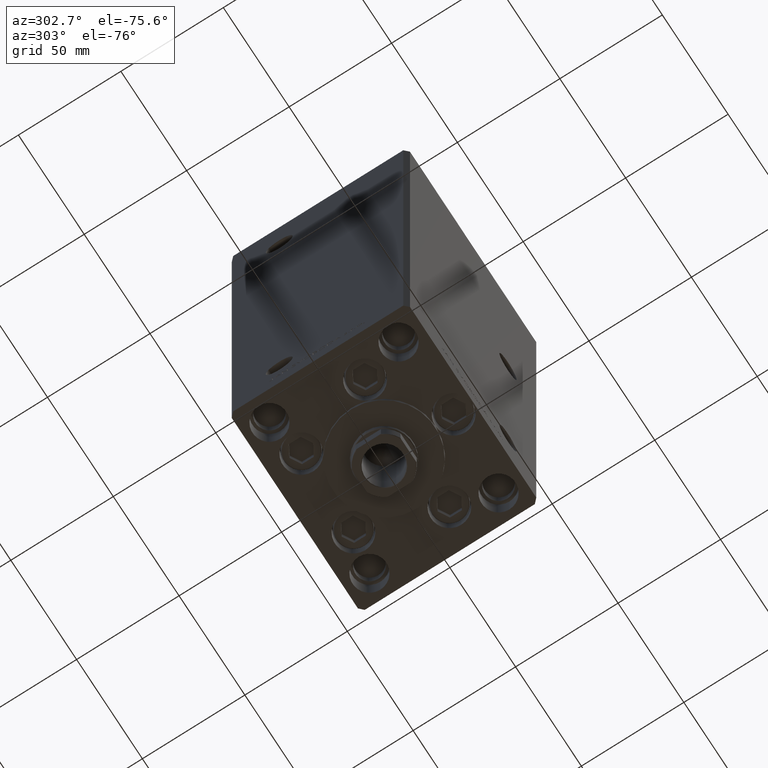
[diagram: clean part render]
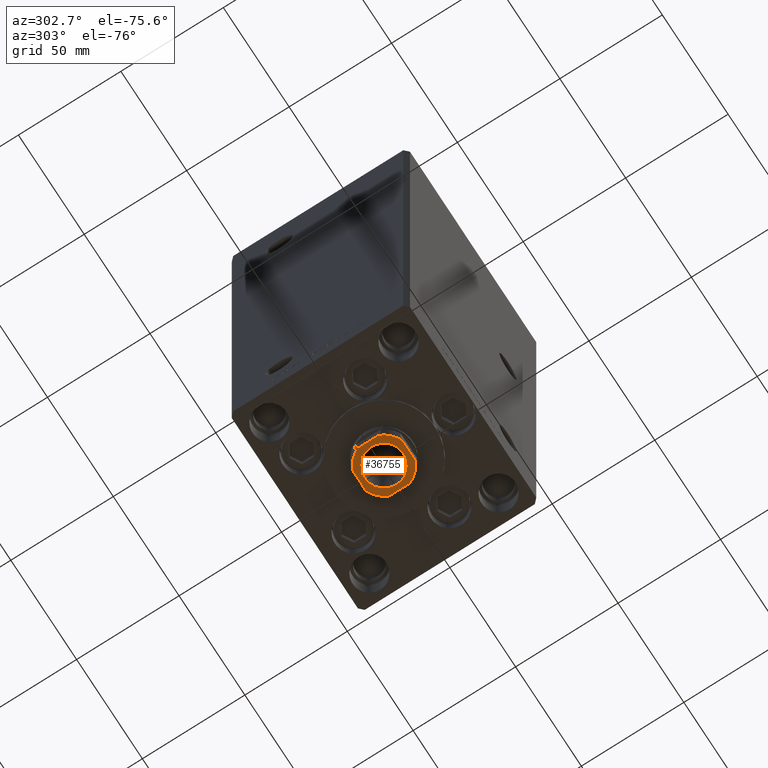
[diagram: same view with one face highlighted and labeled with its STEP entity id]
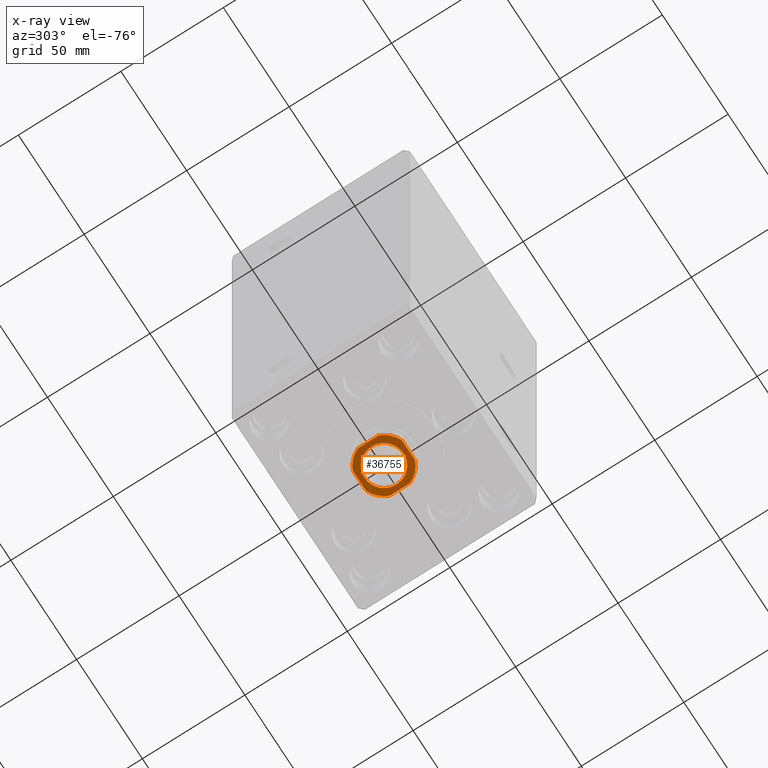
[diagram: x-ray of the same camera — body ghosted, the highlighted face saturated]
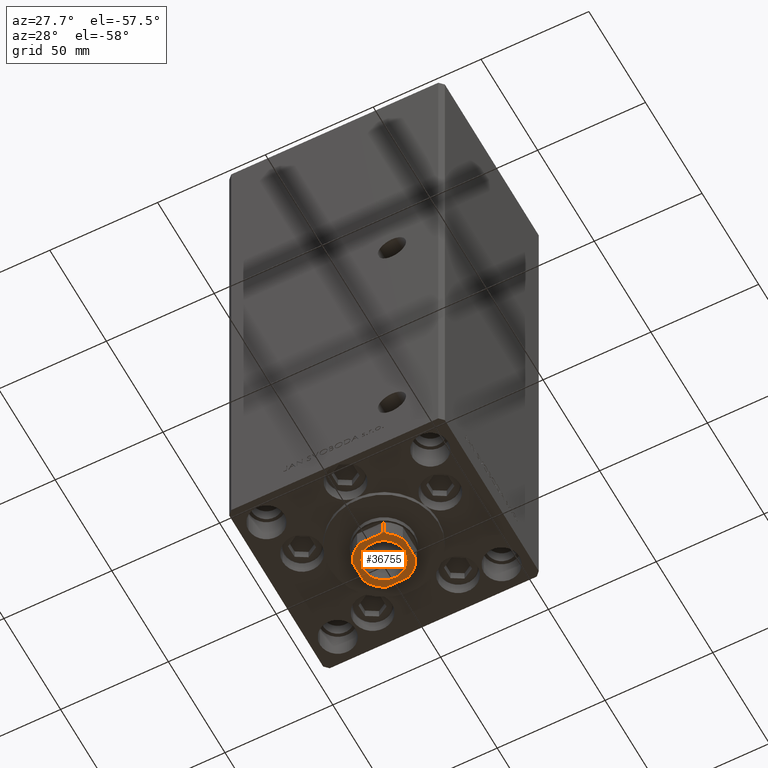
[diagram: same view with one face highlighted and labeled with its STEP entity id]
A machine part, auxiliary view. The second image highlights one B-rep face of the part: STEP entity #36755.
The next image is the same camera in x-ray: the body ghosted, the highlighted face saturated — about 0% of this face is hidden behind the body in this view.
A second angle (auxiliary view) of the same face is appended — the face is thin or edge-on in the first view.
In plain terms, the highlighted planar face has unit normal (0, 0, -1).
Its self-contained STEP definition (entity closure, byte-faithful):
#308 = VERTEX_POINT ( 'NONE', #23030 ) ;
#1111 = DIRECTION ( 'NONE',  ( -0.000000000000000000, 0.000000000000000000, 1.000000000000000000 ) ) ;
#1240 = AXIS2_PLACEMENT_3D ( 'NONE', #31363, #46816, #12111 ) ;
#1353 = LINE ( 'NONE', #32235, #31268 ) ;
#3133 = CARTESIAN_POINT ( 'NONE',  ( 0.000000000000000000, 0.000000000000000000, 235.2500000000000284 ) ) ;
#3930 = EDGE_CURVE ( 'NONE', #17276, #12639, #41546, .T. ) ;
#4208 = CIRCLE ( 'NONE', #11490, 13.00000000000000000 ) ;
#4553 = ORIENTED_EDGE ( 'NONE', *, *, #43275, .T. ) ;
#4821 = CARTESIAN_POINT ( 'NONE',  ( 12.00000000000000178, 4.999999999999994671, 235.2500000000000284 ) ) ;
#6133 = VERTEX_POINT ( 'NONE', #17441 ) ;
#6203 = ORIENTED_EDGE ( 'NONE', *, *, #18767, .T. ) ;
#6729 = CIRCLE ( 'NONE', #23700, 13.00000000000000000 ) ;
#7023 = CARTESIAN_POINT ( 'NONE',  ( -11.99999999999999822, 5.000000000000000888, 235.2500000000000284 ) ) ;
#8615 = VERTEX_POINT ( 'NONE', #9140 ) ;
#8918 = VERTEX_POINT ( 'NONE', #7023 ) ;
#9022 = VERTEX_POINT ( 'NONE', #28773 ) ;
#9140 = CARTESIAN_POINT ( 'NONE',  ( 5.000000000000002665, 12.00000000000000000, 235.2500000000000284 ) ) ;
#9933 = CARTESIAN_POINT ( 'NONE',  ( -11.99999999999999822, 11.99999999999999822, 235.2500000000000284 ) ) ;
#10920 = DIRECTION ( 'NONE',  ( -0.000000000000000000, 0.000000000000000000, 1.000000000000000000 ) ) ;
#11144 = AXIS2_PLACEMENT_3D ( 'NONE', #48764, #41901, #22645 ) ;
#11377 = VERTEX_POINT ( 'NONE', #18659 ) ;
#11490 = AXIS2_PLACEMENT_3D ( 'NONE', #31794, #39637, #28004 ) ;
#12111 = DIRECTION ( 'NONE',  ( 1.000000000000000000, 0.000000000000000000, 0.000000000000000000 ) ) ;
#12639 = VERTEX_POINT ( 'NONE', #4821 ) ;
#13342 = CIRCLE ( 'NONE', #30322, 13.00000000000000000 ) ;
#13727 = DIRECTION ( 'NONE',  ( 7.228014483236695816E-17, -1.000000000000000000, 0.000000000000000000 ) ) ;
#14174 = CIRCLE ( 'NONE', #39300, 9.550000000000002487 ) ;
#16775 = DIRECTION ( 'NONE',  ( 1.000000000000000000, 7.228014483236695816E-17, 0.000000000000000000 ) ) ;
#17276 = VERTEX_POINT ( 'NONE', #25925 ) ;
#17348 = ORIENTED_EDGE ( 'NONE', *, *, #27187, .T. ) ;
#17441 = CARTESIAN_POINT ( 'NONE',  ( 4.999999999999993783, -12.00000000000000178, 235.2500000000000284 ) ) ;
#17756 = DIRECTION ( 'NONE',  ( 1.000000000000000000, 0.000000000000000000, 0.000000000000000000 ) ) ;
#18000 = ORIENTED_EDGE ( 'NONE', *, *, #3930, .T. ) ;
#18659 = CARTESIAN_POINT ( 'NONE',  ( 9.550000000000002487, 0.000000000000000000, 235.2500000000000284 ) ) ;
#18767 = EDGE_CURVE ( 'NONE', #12639, #8615, #38420, .T. ) ;
#18792 = FACE_OUTER_BOUND ( 'NONE', #31934, .T. ) ;
#18813 = EDGE_CURVE ( 'NONE', #9022, #11377, #14174, .T. ) ;
#19038 = FACE_BOUND ( 'NONE', #20611, .T. ) ;
#19218 = CARTESIAN_POINT ( 'NONE',  ( 12.00000000000000000, 12.00000000000000000, 235.2500000000000284 ) ) ;
#20583 = CARTESIAN_POINT ( 'NONE',  ( 0.000000000000000000, 0.000000000000000000, 235.2500000000000284 ) ) ;
#20611 = EDGE_LOOP ( 'NONE', ( #23574, #23853 ) ) ;
#21036 = LINE ( 'NONE', #48643, #22255 ) ;
#21330 = LINE ( 'NONE', #9933, #29301 ) ;
#21814 = EDGE_CURVE ( 'NONE', #11377, #9022, #46734, .T. ) ;
#22255 = VECTOR ( 'NONE', #32702, 1000.000000000000000 ) ;
#22645 = DIRECTION ( 'NONE',  ( 1.000000000000000000, 0.000000000000000000, 0.000000000000000000 ) ) ;
#23030 = CARTESIAN_POINT ( 'NONE',  ( -11.99999999999999822, -5.000000000000001776, 235.2500000000000284 ) ) ;
#23501 = DIRECTION ( 'NONE',  ( 1.000000000000000000, 0.000000000000000000, 0.000000000000000000 ) ) ;
#23574 = ORIENTED_EDGE ( 'NONE', *, *, #21814, .T. ) ;
#23700 = AXIS2_PLACEMENT_3D ( 'NONE', #20583, #1111, #28456 ) ;
#23853 = ORIENTED_EDGE ( 'NONE', *, *, #18813, .T. ) ;
#24406 = ORIENTED_EDGE ( 'NONE', *, *, #34558, .T. ) ;
#24624 = CARTESIAN_POINT ( 'NONE',  ( -5.000000000000001776, 11.99999999999999822, 235.2500000000000284 ) ) ;
#25925 = CARTESIAN_POINT ( 'NONE',  ( 12.00000000000000178, -4.999999999999990230, 235.2500000000000284 ) ) ;
#27135 = CARTESIAN_POINT ( 'NONE',  ( -4.999999999999992895, -12.00000000000000178, 235.2500000000000284 ) ) ;
#27187 = EDGE_CURVE ( 'NONE', #6133, #17276, #4208, .T. ) ;
#27553 = EDGE_CURVE ( 'NONE', #8918, #308, #21330, .T. ) ;
#27713 = VERTEX_POINT ( 'NONE', #24624 ) ;
#27840 = AXIS2_PLACEMENT_3D ( 'NONE', #3133, #41363, #46155 ) ;
#27894 = ORIENTED_EDGE ( 'NONE', *, *, #27553, .T. ) ;
#28004 = DIRECTION ( 'NONE',  ( 1.000000000000000000, 0.000000000000000000, 0.000000000000000000 ) ) ;
#28456 = DIRECTION ( 'NONE',  ( 1.000000000000000000, 0.000000000000000000, 0.000000000000000000 ) ) ;
#28693 = VERTEX_POINT ( 'NONE', #27135 ) ;
#28773 = CARTESIAN_POINT ( 'NONE',  ( -9.550000000000002487, 1.169537693185722755E-15, 235.2500000000000284 ) ) ;
#29301 = VECTOR ( 'NONE', #13727, 1000.000000000000000 ) ;
#29735 = PLANE ( 'NONE',  #27840 ) ;
#29994 = ORIENTED_EDGE ( 'NONE', *, *, #41956, .T. ) ;
#30322 = AXIS2_PLACEMENT_3D ( 'NONE', #45131, #10920, #17756 ) ;
#31268 = VECTOR ( 'NONE', #16775, 1000.000000000000000 ) ;
#31363 = CARTESIAN_POINT ( 'NONE',  ( 0.000000000000000000, 0.000000000000000000, 235.2500000000000284 ) ) ;
#31794 = CARTESIAN_POINT ( 'NONE',  ( 0.000000000000000000, 0.000000000000000000, 235.2500000000000284 ) ) ;
#31934 = EDGE_LOOP ( 'NONE', ( #27894, #24406, #29994, #17348, #18000, #6203, #4553, #45436 ) ) ;
#32235 = CARTESIAN_POINT ( 'NONE',  ( -11.99999999999999645, -12.00000000000000178, 235.2500000000000284 ) ) ;
#32702 = DIRECTION ( 'NONE',  ( -1.000000000000000000, -7.228014483236695816E-17, -0.000000000000000000 ) ) ;
#34558 = EDGE_CURVE ( 'NONE', #308, #28693, #6729, .T. ) ;
#34685 = DIRECTION ( 'NONE',  ( -1.445602896647339163E-16, 1.000000000000000000, -0.000000000000000000 ) ) ;
#36755 = ADVANCED_FACE ( 'NONE', ( #19038, #18792 ), #29735, .T. ) ;
#37961 = DIRECTION ( 'NONE',  ( 0.000000000000000000, -0.000000000000000000, -1.000000000000000000 ) ) ;
#38420 = CIRCLE ( 'NONE', #1240, 13.00000000000000000 ) ;
#38568 = EDGE_CURVE ( 'NONE', #27713, #8918, #13342, .T. ) ;
#39300 = AXIS2_PLACEMENT_3D ( 'NONE', #45814, #37961, #23501 ) ;
#39637 = DIRECTION ( 'NONE',  ( -0.000000000000000000, 0.000000000000000000, 1.000000000000000000 ) ) ;
#41363 = DIRECTION ( 'NONE',  ( -0.000000000000000000, 0.000000000000000000, 1.000000000000000000 ) ) ;
#41546 = LINE ( 'NONE', #19218, #43760 ) ;
#41901 = DIRECTION ( 'NONE',  ( 0.000000000000000000, -0.000000000000000000, -1.000000000000000000 ) ) ;
#41956 = EDGE_CURVE ( 'NONE', #28693, #6133, #1353, .T. ) ;
#43275 = EDGE_CURVE ( 'NONE', #8615, #27713, #21036, .T. ) ;
#43760 = VECTOR ( 'NONE', #34685, 1000.000000000000000 ) ;
#45131 = CARTESIAN_POINT ( 'NONE',  ( 0.000000000000000000, 0.000000000000000000, 235.2500000000000284 ) ) ;
#45436 = ORIENTED_EDGE ( 'NONE', *, *, #38568, .T. ) ;
#45814 = CARTESIAN_POINT ( 'NONE',  ( 0.000000000000000000, 0.000000000000000000, 235.2500000000000284 ) ) ;
#46155 = DIRECTION ( 'NONE',  ( 1.000000000000000000, 0.000000000000000000, 0.000000000000000000 ) ) ;
#46734 = CIRCLE ( 'NONE', #11144, 9.550000000000002487 ) ;
#46816 = DIRECTION ( 'NONE',  ( -0.000000000000000000, 0.000000000000000000, 1.000000000000000000 ) ) ;
#48643 = CARTESIAN_POINT ( 'NONE',  ( -11.99999999999999822, 11.99999999999999822, 235.2500000000000284 ) ) ;
#48764 = CARTESIAN_POINT ( 'NONE',  ( 0.000000000000000000, 0.000000000000000000, 235.2500000000000284 ) ) ;